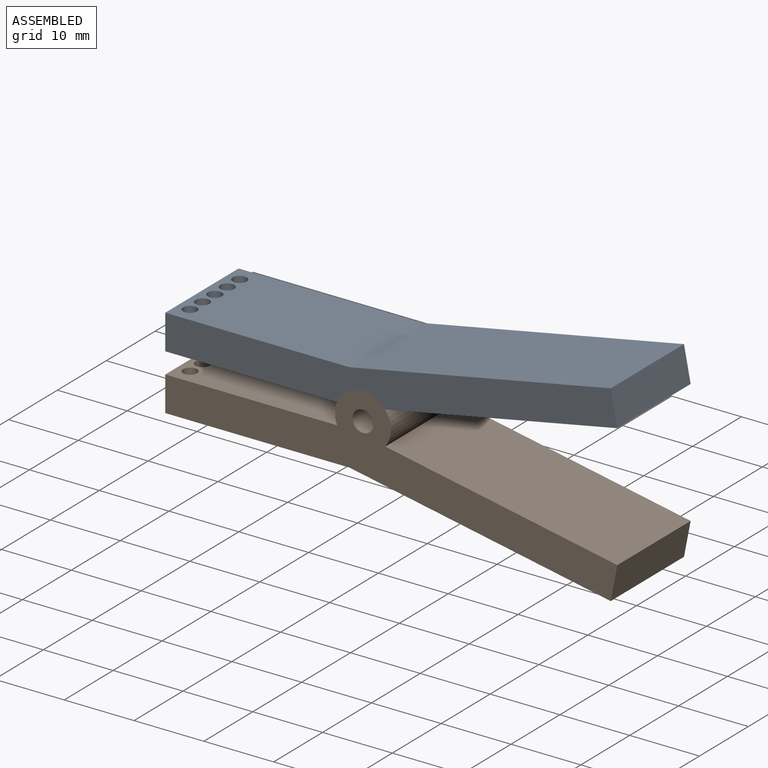
[diagram: assembled view]
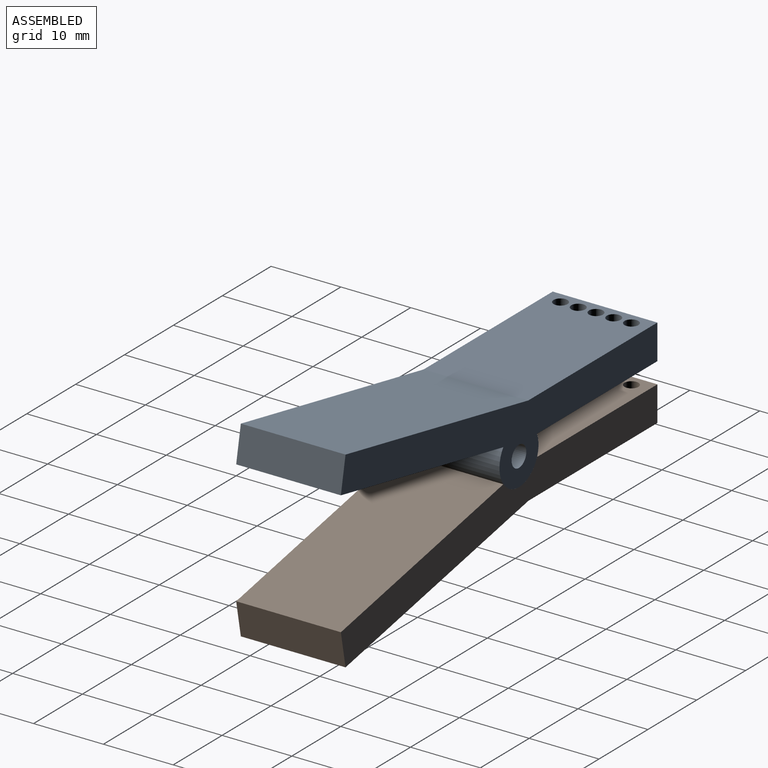
[diagram: assembled view, second angle]
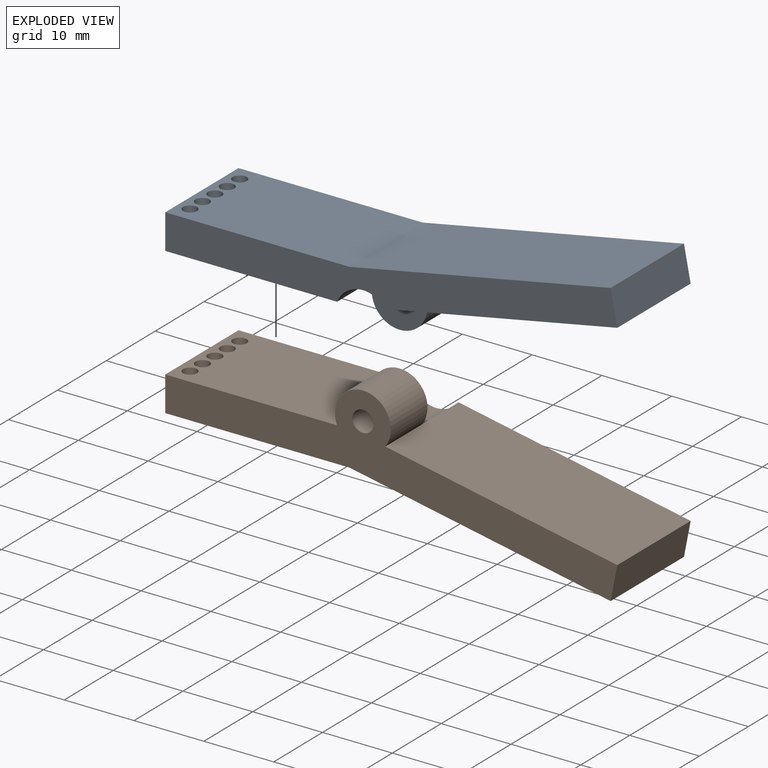
[diagram: exploded view]
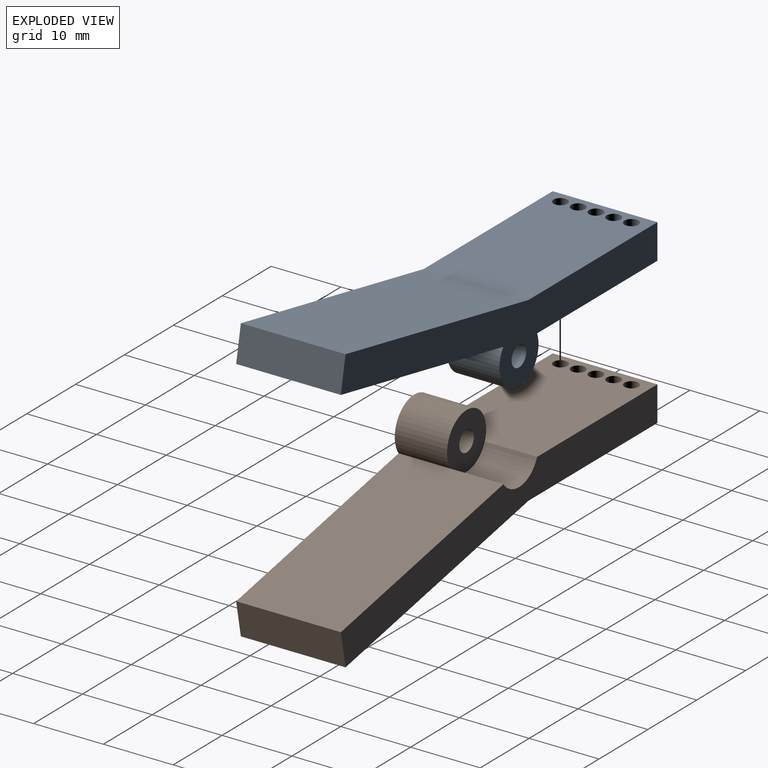
[diagram: exploded view, second angle]
ASSEMBLY  parts=2 mates=2
PART A: 17 faces, bbox 64.8x15x17.8 mm
  f0: cylinder r=4mm len=8mm, axis (0,1,0), area 125.1mm2, adj f6,f7,f9,f16
  f1: cylinder r=1.5mm len=7.5mm, axis (0,-1,0), area 70.7mm2, adj f9,f16
  f2: plane 15x4.91mm, normal (0.98,0,0.19), area 75mm2, adj f3,f7,f8,f9
  f3: plane 37.42x15mm, normal (-0.19,0,0.98), area 571.8mm2, adj f2,f4,f8,f9
  f4: plane 26.4x15mm, normal (0,0,1), area 380.2mm2, adj f3,f5,f8,f9,f10,f11,f12,f13
  f5: plane 15x5mm, normal (-1,0,0), area 75mm2, adj f4,f6,f8,f9
  f6: plane 24.61x15mm, normal (0,0,-1), area 353.5mm2, adj f0,f5,f8,f9,f10,f11,f12,f13
  f7: plane 33.25x15mm, normal (0.19,0,-0.98), area 508.1mm2, adj f0,f2,f8,f9,f15
  f8: plane 64.77x12.27mm, normal (0,-1,0), area 313.9mm2, adj f2,f3,f4,f5,f6,f7,f15
  f9: plane 64.77x17.77mm, normal (0,1,0), area 357.1mm2, adj f0,f1,f2,f3,f4,f5,f6,f7
  f10: cylinder r=1mm len=5mm, axis (0,0,-1), area 31.4mm2, adj f4,f6
  f11: cylinder r=1mm len=5mm, axis (0,0,-1), area 31.4mm2, adj f4,f6
  f12: cylinder r=1mm len=5mm, axis (0,0,-1), area 31.4mm2, adj f4,f6
  f13: cylinder r=1mm len=5mm, axis (0,0,-1), area 31.4mm2, adj f4,f6
  f14: cylinder r=1mm len=5mm, axis (0,0,-1), area 31.4mm2, adj f4,f6
  f15: cylinder r=4mm len=7.5mm, axis (0,-1,0), area 63.4mm2, adj f6,f7,f8,f16
  f16: plane 8x8mm, normal (0,-1,0), area 43.2mm2, adj f0,f1,f15
PART B: same geometry as A
PLACE A t=(-17.38,-5.13,11.8)mm fixed
PLACE B rot(axis=(-1,0,0),180deg) t=(-17.38,-5.13,8.8)mm
MATE planar B.f9 <-> A.f8  axis (0,-1,0) through (-45.7,-12.63,8.8)mm
MATE cylindrical A.f1 <-> B.f1  axis (0,-1,0) through (-17.38,-1.38,10.3)mm
